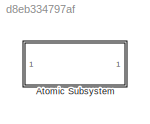
MODEL slx_d8eb334797af
KIND model
CONFIG AbsTol = auto
CONFIG EnableMultiTasking = off
CONFIG FixedStep = auto
CONFIG MaxStep = auto
CONFIG MinStep = auto
CONFIG RelTol = 1e-3
CONFIG SampleTimeConstraint = Unconstrained
CONFIG Solver = VariableStepAuto
CONFIG SolverName = VariableStepAuto
CONFIG StartTime = 0.0
CONFIG StopTime = 10.0
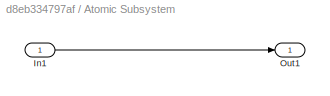
BLOCK [SubSystem] Atomic Subsystem
  Ports = [1, 1]
  RequestExecContextInheritance = off
  TreatAsAtomicUnit = on
BLOCK [Inport] Atomic Subsystem/In1
  IconDisplay = Port number
BLOCK [Outport] Atomic Subsystem/Out1
  IconDisplay = Port number
LINE Atomic Subsystem/In1:1 -> Atomic Subsystem/Out1:1
